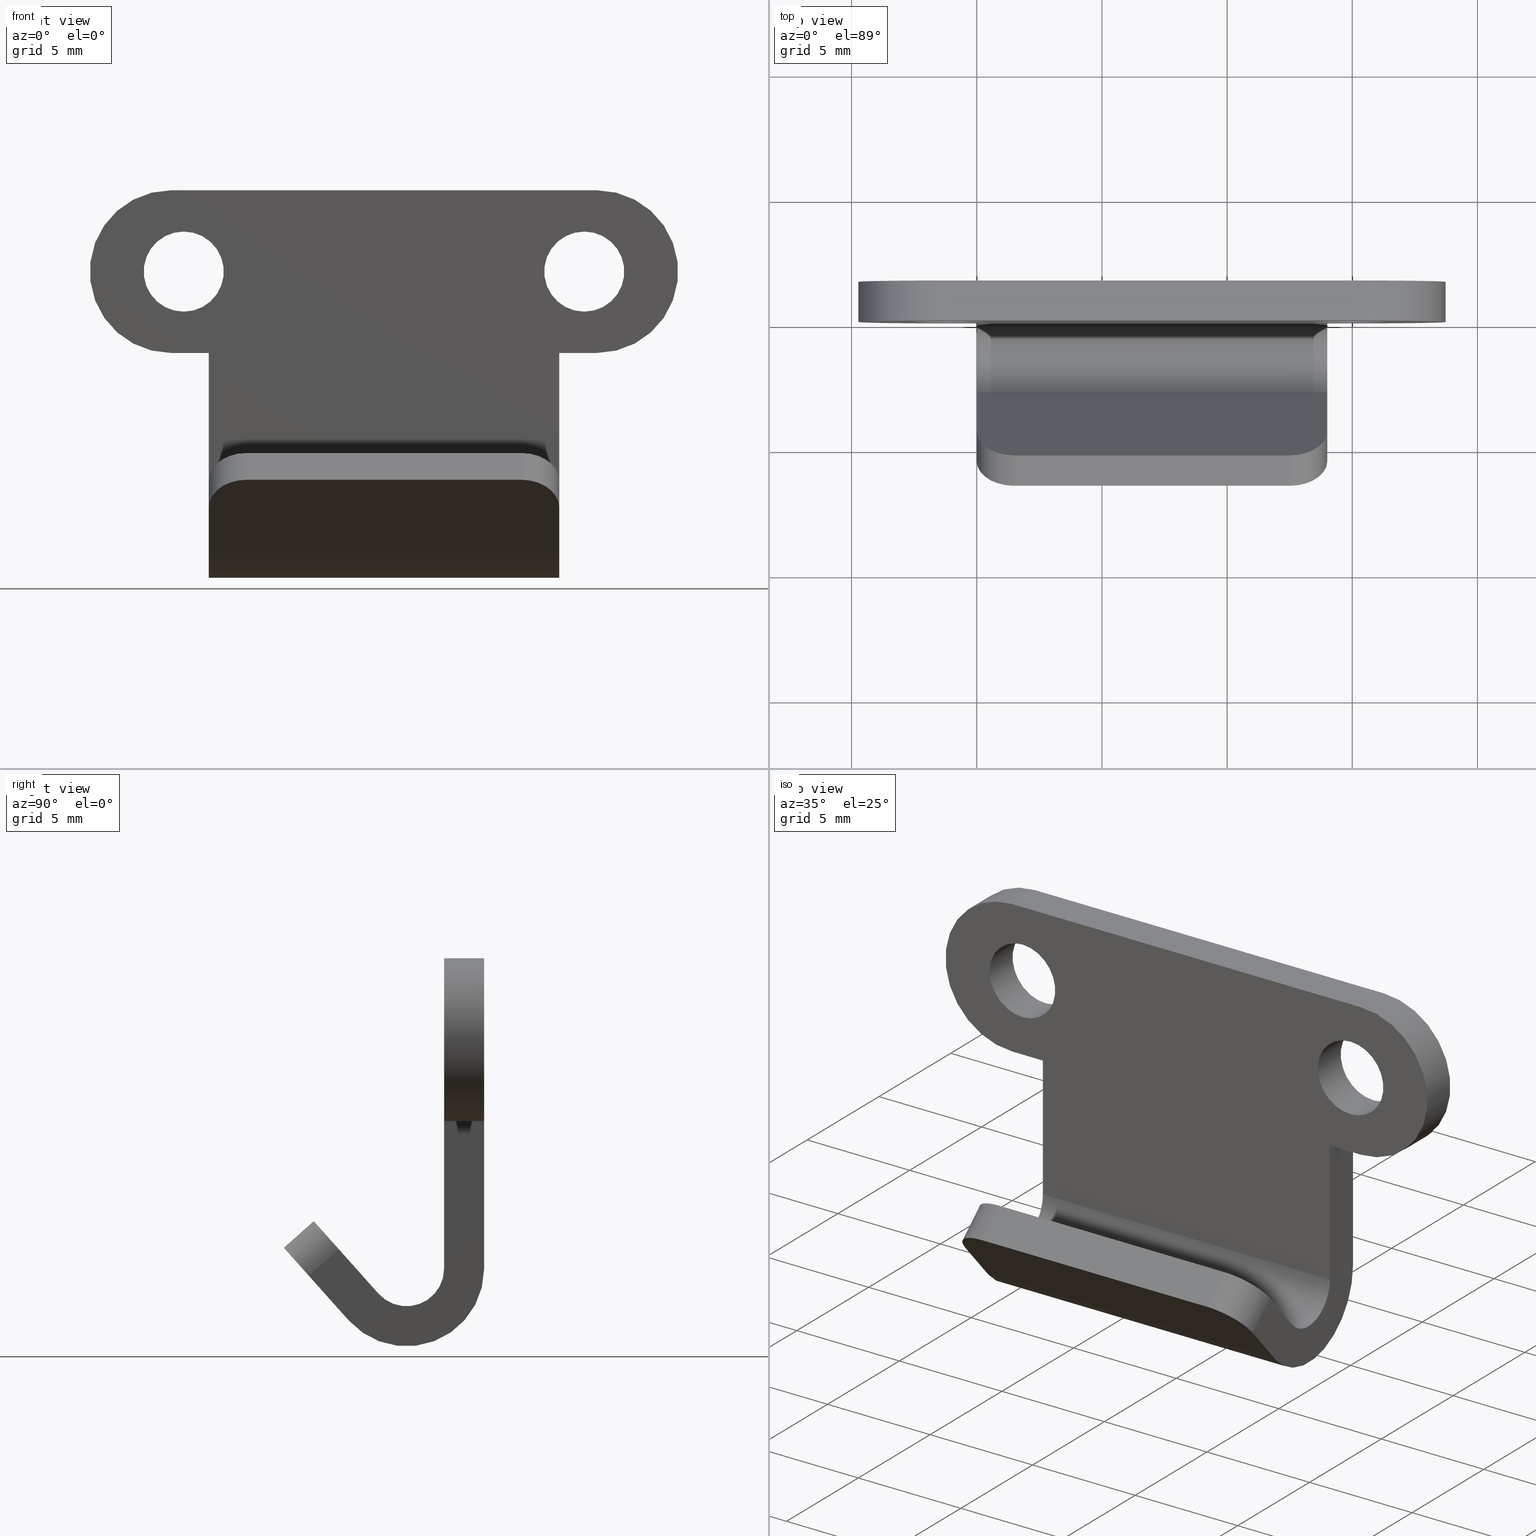
[diagram: canonical four-view strip — front | top / right | iso, engineering-drawing reading convention]
A machine part, canonical four-view strip (front | top / right | iso — engineering-drawing reading convention). The complete STEP part file that produces these views, byte-faithful:
ISO-10303-21;
HEADER;

FILE_DESCRIPTION( (''), '2;1');
FILE_NAME ('PC008.10740.TL_176Z_2_14907.stp','2022-11-01T15:23:56',(''),(''),'spGate 18.9.1 (****-****-****-****)','','');

FILE_SCHEMA (('AUTOMOTIVE_DESIGN'));
ENDSEC;

DATA;
#10=(GEOMETRIC_REPRESENTATION_CONTEXT(3) GLOBAL_UNCERTAINTY_ASSIGNED_CONTEXT((#11)) GLOBAL_UNIT_ASSIGNED_CONTEXT((#12,#13,#14)) REPRESENTATION_CONTEXT('ID1','3D'));
#11=UNCERTAINTY_MEASURE_WITH_UNIT(LENGTH_MEASURE(0.01),#15,'DISTANCE_ACCURACY_VALUE','Maximum model space distance between geometric entities at asserted connectivities');
#12=(NAMED_UNIT(*) SI_UNIT($,.STERADIAN.) SOLID_ANGLE_UNIT());
#13=(CONVERSION_BASED_UNIT('DEGREE',#16) NAMED_UNIT(#17) PLANE_ANGLE_UNIT());
#14=(LENGTH_UNIT() NAMED_UNIT(*) SI_UNIT(.MILLI.,.METRE.));
#15=(LENGTH_UNIT() NAMED_UNIT(*) SI_UNIT(.MILLI.,.METRE.));
#16=PLANE_ANGLE_MEASURE_WITH_UNIT(PLANE_ANGLE_MEASURE(0.01745329252),#18);
#17=DIMENSIONAL_EXPONENTS(0.0,0.0,0.0,0.0,0.0,0.0,0.0);
#18=(NAMED_UNIT(*) PLANE_ANGLE_UNIT() SI_UNIT($,.RADIAN.));
#19=MANIFOLD_SOLID_BREP('TL_176_2',#31);
#20=ADVANCED_BREP_SHAPE_REPRESENTATION('',(#19),#10);
#21=APPLICATION_CONTEXT('');
#22=APPLICATION_PROTOCOL_DEFINITION('International Standard','automotive_design',1999,#21);
#23=PRODUCT_DEFINITION_CONTEXT('',#21,'design');
#24=PRODUCT_CONTEXT('',#21,'mechanical');
#25=PRODUCT('','','',(#24));
#26=PRODUCT_DEFINITION_FORMATION_WITH_SPECIFIED_SOURCE('','',#25,.NOT_KNOWN.);
#27=PRODUCT_RELATED_PRODUCT_CATEGORY('tool','tool',(#25));
#28=PRODUCT_DEFINITION('','',#26,#23);
#29=PRODUCT_DEFINITION_SHAPE('','',#28);
#30=SHAPE_DEFINITION_REPRESENTATION(#29,#20);
#31=CLOSED_SHELL('',(#40,#41,#42,#43,#44,#45,#46,#47,#48,#49,#50,#51,#52,#53,#54,#55,#56,#57,#58,#59));
#32=COLOUR_RGB('',0.00000000000E+00,0.00000000000E+00,0.00000000000E+00);
#33=FILL_AREA_STYLE_COLOUR('',#32);
#34=FILL_AREA_STYLE('',(#33));
#35=SURFACE_STYLE_FILL_AREA(#34);
#36=SURFACE_SIDE_STYLE('',(#35));
#37=SURFACE_STYLE_USAGE(.BOTH.,#36);
#38=PRESENTATION_STYLE_ASSIGNMENT((#37));
#39=STYLED_ITEM('',(#38),#19);
#40=ADVANCED_FACE('',(#61),#60,.T.);
#41=ADVANCED_FACE('',(#71),#70,.T.);
#42=ADVANCED_FACE('',(#81),#80,.T.);
#43=ADVANCED_FACE('',(#91),#90,.T.);
#44=ADVANCED_FACE('',(#101),#100,.T.);
#45=ADVANCED_FACE('',(#111,#112,#113),#110,.T.);
#46=ADVANCED_FACE('',(#123),#122,.T.);
#47=ADVANCED_FACE('',(#133),#132,.F.);
#48=ADVANCED_FACE('',(#143),#142,.T.);
#49=ADVANCED_FACE('',(#153),#152,.T.);
#50=ADVANCED_FACE('',(#163),#162,.T.);
#51=ADVANCED_FACE('',(#173,#174,#175),#172,.T.);
#52=ADVANCED_FACE('',(#185),#184,.T.);
#53=ADVANCED_FACE('',(#195),#194,.T.);
#54=ADVANCED_FACE('',(#205),#204,.T.);
#55=ADVANCED_FACE('',(#215),#214,.T.);
#56=ADVANCED_FACE('',(#225),#224,.F.);
#57=ADVANCED_FACE('',(#235),#234,.F.);
#58=ADVANCED_FACE('',(#245),#244,.F.);
#59=ADVANCED_FACE('',(#255),#254,.F.);
#60=CYLINDRICAL_SURFACE('',#267,1.50000000000E+00);
#61=FACE_OUTER_BOUND('',#268,.T.);
#62=COLOUR_RGB('',1.00000000000E+00,1.00000000000E+00,1.00000000000E+00);
#63=FILL_AREA_STYLE_COLOUR('',#62);
#64=FILL_AREA_STYLE('',(#63));
#65=SURFACE_STYLE_FILL_AREA(#64);
#66=SURFACE_SIDE_STYLE('',(#65));
#67=SURFACE_STYLE_USAGE(.BOTH.,#66);
#68=PRESENTATION_STYLE_ASSIGNMENT((#67));
#69=STYLED_ITEM('',(#68),#40);
#70=PLANE('',#272);
#71=FACE_OUTER_BOUND('',#273,.T.);
#72=COLOUR_RGB('',1.00000000000E+00,1.00000000000E+00,1.00000000000E+00);
#73=FILL_AREA_STYLE_COLOUR('',#72);
#74=FILL_AREA_STYLE('',(#73));
#75=SURFACE_STYLE_FILL_AREA(#74);
#76=SURFACE_SIDE_STYLE('',(#75));
#77=SURFACE_STYLE_USAGE(.BOTH.,#76);
#78=PRESENTATION_STYLE_ASSIGNMENT((#77));
#79=STYLED_ITEM('',(#78),#41);
#80=PLANE('',#277);
#81=FACE_OUTER_BOUND('',#278,.T.);
#82=COLOUR_RGB('',1.00000000000E+00,1.00000000000E+00,1.00000000000E+00);
#83=FILL_AREA_STYLE_COLOUR('',#82);
#84=FILL_AREA_STYLE('',(#83));
#85=SURFACE_STYLE_FILL_AREA(#84);
#86=SURFACE_SIDE_STYLE('',(#85));
#87=SURFACE_STYLE_USAGE(.BOTH.,#86);
#88=PRESENTATION_STYLE_ASSIGNMENT((#87));
#89=STYLED_ITEM('',(#88),#42);
#90=CYLINDRICAL_SURFACE('',#282,1.50000000000E+00);
#91=FACE_OUTER_BOUND('',#283,.T.);
#92=COLOUR_RGB('',1.00000000000E+00,1.00000000000E+00,1.00000000000E+00);
#93=FILL_AREA_STYLE_COLOUR('',#92);
#94=FILL_AREA_STYLE('',(#93));
#95=SURFACE_STYLE_FILL_AREA(#94);
#96=SURFACE_SIDE_STYLE('',(#95));
#97=SURFACE_STYLE_USAGE(.BOTH.,#96);
#98=PRESENTATION_STYLE_ASSIGNMENT((#97));
#99=STYLED_ITEM('',(#98),#43);
#100=CYLINDRICAL_SURFACE('',#287,3.25000000000E+00);
#101=FACE_OUTER_BOUND('',#288,.T.);
#102=COLOUR_RGB('',1.00000000000E+00,1.00000000000E+00,1.00000000000E+00);
#103=FILL_AREA_STYLE_COLOUR('',#102);
#104=FILL_AREA_STYLE('',(#103));
#105=SURFACE_STYLE_FILL_AREA(#104);
#106=SURFACE_SIDE_STYLE('',(#105));
#107=SURFACE_STYLE_USAGE(.BOTH.,#106);
#108=PRESENTATION_STYLE_ASSIGNMENT((#107));
#109=STYLED_ITEM('',(#108),#44);
#110=PLANE('',#292);
#111=FACE_OUTER_BOUND('',#293,.T.);
#112=FACE_BOUND('',#294,.T.);
#113=FACE_BOUND('',#295,.T.);
#114=COLOUR_RGB('',1.00000000000E+00,1.00000000000E+00,1.00000000000E+00);
#115=FILL_AREA_STYLE_COLOUR('',#114);
#116=FILL_AREA_STYLE('',(#115));
#117=SURFACE_STYLE_FILL_AREA(#116);
#118=SURFACE_SIDE_STYLE('',(#117));
#119=SURFACE_STYLE_USAGE(.BOTH.,#118);
#120=PRESENTATION_STYLE_ASSIGNMENT((#119));
#121=STYLED_ITEM('',(#120),#45);
#122=PLANE('',#299);
#123=FACE_OUTER_BOUND('',#300,.T.);
#124=COLOUR_RGB('',1.00000000000E+00,1.00000000000E+00,1.00000000000E+00);
#125=FILL_AREA_STYLE_COLOUR('',#124);
#126=FILL_AREA_STYLE('',(#125));
#127=SURFACE_STYLE_FILL_AREA(#126);
#128=SURFACE_SIDE_STYLE('',(#127));
#129=SURFACE_STYLE_USAGE(.BOTH.,#128);
#130=PRESENTATION_STYLE_ASSIGNMENT((#129));
#131=STYLED_ITEM('',(#130),#46);
#132=CYLINDRICAL_SURFACE('',#304,1.50000000000E+00);
#133=FACE_OUTER_BOUND('',#305,.T.);
#134=COLOUR_RGB('',1.00000000000E+00,1.00000000000E+00,1.00000000000E+00);
#135=FILL_AREA_STYLE_COLOUR('',#134);
#136=FILL_AREA_STYLE('',(#135));
#137=SURFACE_STYLE_FILL_AREA(#136);
#138=SURFACE_SIDE_STYLE('',(#137));
#139=SURFACE_STYLE_USAGE(.BOTH.,#138);
#140=PRESENTATION_STYLE_ASSIGNMENT((#139));
#141=STYLED_ITEM('',(#140),#47);
#142=PLANE('',#309);
#143=FACE_OUTER_BOUND('',#310,.T.);
#144=COLOUR_RGB('',1.00000000000E+00,1.00000000000E+00,1.00000000000E+00);
#145=FILL_AREA_STYLE_COLOUR('',#144);
#146=FILL_AREA_STYLE('',(#145));
#147=SURFACE_STYLE_FILL_AREA(#146);
#148=SURFACE_SIDE_STYLE('',(#147));
#149=SURFACE_STYLE_USAGE(.BOTH.,#148);
#150=PRESENTATION_STYLE_ASSIGNMENT((#149));
#151=STYLED_ITEM('',(#150),#48);
#152=PLANE('',#314);
#153=FACE_OUTER_BOUND('',#315,.T.);
#154=COLOUR_RGB('',1.00000000000E+00,1.00000000000E+00,1.00000000000E+00);
#155=FILL_AREA_STYLE_COLOUR('',#154);
#156=FILL_AREA_STYLE('',(#155));
#157=SURFACE_STYLE_FILL_AREA(#156);
#158=SURFACE_SIDE_STYLE('',(#157));
#159=SURFACE_STYLE_USAGE(.BOTH.,#158);
#160=PRESENTATION_STYLE_ASSIGNMENT((#159));
#161=STYLED_ITEM('',(#160),#49);
#162=PLANE('',#319);
#163=FACE_OUTER_BOUND('',#320,.T.);
#164=COLOUR_RGB('',1.00000000000E+00,1.00000000000E+00,1.00000000000E+00);
#165=FILL_AREA_STYLE_COLOUR('',#164);
#166=FILL_AREA_STYLE('',(#165));
#167=SURFACE_STYLE_FILL_AREA(#166);
#168=SURFACE_SIDE_STYLE('',(#167));
#169=SURFACE_STYLE_USAGE(.BOTH.,#168);
#170=PRESENTATION_STYLE_ASSIGNMENT((#169));
#171=STYLED_ITEM('',(#170),#50);
#172=PLANE('',#324);
#173=FACE_OUTER_BOUND('',#325,.T.);
#174=FACE_BOUND('',#326,.T.);
#175=FACE_BOUND('',#327,.T.);
#176=COLOUR_RGB('',1.00000000000E+00,1.00000000000E+00,1.00000000000E+00);
#177=FILL_AREA_STYLE_COLOUR('',#176);
#178=FILL_AREA_STYLE('',(#177));
#179=SURFACE_STYLE_FILL_AREA(#178);
#180=SURFACE_SIDE_STYLE('',(#179));
#181=SURFACE_STYLE_USAGE(.BOTH.,#180);
#182=PRESENTATION_STYLE_ASSIGNMENT((#181));
#183=STYLED_ITEM('',(#182),#51);
#184=CYLINDRICAL_SURFACE('',#331,3.10000000000E+00);
#185=FACE_OUTER_BOUND('',#332,.T.);
#186=COLOUR_RGB('',1.00000000000E+00,1.00000000000E+00,1.00000000000E+00);
#187=FILL_AREA_STYLE_COLOUR('',#186);
#188=FILL_AREA_STYLE('',(#187));
#189=SURFACE_STYLE_FILL_AREA(#188);
#190=SURFACE_SIDE_STYLE('',(#189));
#191=SURFACE_STYLE_USAGE(.BOTH.,#190);
#192=PRESENTATION_STYLE_ASSIGNMENT((#191));
#193=STYLED_ITEM('',(#192),#52);
#194=PLANE('',#336);
#195=FACE_OUTER_BOUND('',#337,.T.);
#196=COLOUR_RGB('',1.00000000000E+00,1.00000000000E+00,1.00000000000E+00);
#197=FILL_AREA_STYLE_COLOUR('',#196);
#198=FILL_AREA_STYLE('',(#197));
#199=SURFACE_STYLE_FILL_AREA(#198);
#200=SURFACE_SIDE_STYLE('',(#199));
#201=SURFACE_STYLE_USAGE(.BOTH.,#200);
#202=PRESENTATION_STYLE_ASSIGNMENT((#201));
#203=STYLED_ITEM('',(#202),#53);
#204=CYLINDRICAL_SURFACE('',#341,3.25000000000E+00);
#205=FACE_OUTER_BOUND('',#342,.T.);
#206=COLOUR_RGB('',1.00000000000E+00,1.00000000000E+00,1.00000000000E+00);
#207=FILL_AREA_STYLE_COLOUR('',#206);
#208=FILL_AREA_STYLE('',(#207));
#209=SURFACE_STYLE_FILL_AREA(#208);
#210=SURFACE_SIDE_STYLE('',(#209));
#211=SURFACE_STYLE_USAGE(.BOTH.,#210);
#212=PRESENTATION_STYLE_ASSIGNMENT((#211));
#213=STYLED_ITEM('',(#212),#54);
#214=PLANE('',#346);
#215=FACE_OUTER_BOUND('',#347,.T.);
#216=COLOUR_RGB('',1.00000000000E+00,1.00000000000E+00,1.00000000000E+00);
#217=FILL_AREA_STYLE_COLOUR('',#216);
#218=FILL_AREA_STYLE('',(#217));
#219=SURFACE_STYLE_FILL_AREA(#218);
#220=SURFACE_SIDE_STYLE('',(#219));
#221=SURFACE_STYLE_USAGE(.BOTH.,#220);
#222=PRESENTATION_STYLE_ASSIGNMENT((#221));
#223=STYLED_ITEM('',(#222),#55);
#224=CYLINDRICAL_SURFACE('',#351,1.60000000000E+00);
#225=FACE_OUTER_BOUND('',#352,.T.);
#226=COLOUR_RGB('',1.00000000000E+00,1.00000000000E+00,1.00000000000E+00);
#227=FILL_AREA_STYLE_COLOUR('',#226);
#228=FILL_AREA_STYLE('',(#227));
#229=SURFACE_STYLE_FILL_AREA(#228);
#230=SURFACE_SIDE_STYLE('',(#229));
#231=SURFACE_STYLE_USAGE(.BOTH.,#230);
#232=PRESENTATION_STYLE_ASSIGNMENT((#231));
#233=STYLED_ITEM('',(#232),#56);
#234=CYLINDRICAL_SURFACE('',#356,1.60000000000E+00);
#235=FACE_OUTER_BOUND('',#357,.T.);
#236=COLOUR_RGB('',1.00000000000E+00,1.00000000000E+00,1.00000000000E+00);
#237=FILL_AREA_STYLE_COLOUR('',#236);
#238=FILL_AREA_STYLE('',(#237));
#239=SURFACE_STYLE_FILL_AREA(#238);
#240=SURFACE_SIDE_STYLE('',(#239));
#241=SURFACE_STYLE_USAGE(.BOTH.,#240);
#242=PRESENTATION_STYLE_ASSIGNMENT((#241));
#243=STYLED_ITEM('',(#242),#57);
#244=CYLINDRICAL_SURFACE('',#361,1.60000000000E+00);
#245=FACE_OUTER_BOUND('',#362,.T.);
#246=COLOUR_RGB('',1.00000000000E+00,1.00000000000E+00,1.00000000000E+00);
#247=FILL_AREA_STYLE_COLOUR('',#246);
#248=FILL_AREA_STYLE('',(#247));
#249=SURFACE_STYLE_FILL_AREA(#248);
#250=SURFACE_SIDE_STYLE('',(#249));
#251=SURFACE_STYLE_USAGE(.BOTH.,#250);
#252=PRESENTATION_STYLE_ASSIGNMENT((#251));
#253=STYLED_ITEM('',(#252),#58);
#254=CYLINDRICAL_SURFACE('',#366,1.60000000000E+00);
#255=FACE_OUTER_BOUND('',#367,.T.);
#256=COLOUR_RGB('',1.00000000000E+00,1.00000000000E+00,1.00000000000E+00);
#257=FILL_AREA_STYLE_COLOUR('',#256);
#258=FILL_AREA_STYLE('',(#257));
#259=SURFACE_STYLE_FILL_AREA(#258);
#260=SURFACE_SIDE_STYLE('',(#259));
#261=SURFACE_STYLE_USAGE(.BOTH.,#260);
#262=PRESENTATION_STYLE_ASSIGNMENT((#261));
#263=STYLED_ITEM('',(#262),#59);
#264=CARTESIAN_POINT('',(-1.35000000000E+01,-4.20798408523E+00,-8.36898286298E+00));
#265=DIRECTION('',(2.59437106580E-13,7.45988575320E-01,6.65958741584E-01));
#266=DIRECTION('',(-2.36847578587E-15,6.65958741584E-01,-7.45988575320E-01));
#267=AXIS2_PLACEMENT_3D('',#264,#265,#266);
#268=EDGE_LOOP('',(#368,#369,#370,#371));
#269=CARTESIAN_POINT('',(-1.50000000000E+01,2.30015658058E+00,-1.37632308630E+01));
#270=DIRECTION('',(-1.00000000000E+00,0.00000000000E+00,3.92320173035E-13));
#271=DIRECTION('',(0.00000000000E+00,-1.00000000000E+00,0.00000000000E+00));
#272=AXIS2_PLACEMENT_3D('',#269,#270,#271);
#273=EDGE_LOOP('',(#372,#373,#374,#375,#376,#377,#378,#379));
#274=CARTESIAN_POINT('',(-1.15000000000E+00,-1.60000000001E-01,-3.25000000000E+00));
#275=DIRECTION('',(0.00000000000E+00,0.00000000000E+00,-1.00000000000E+00));
#276=DIRECTION('',(0.00000000000E+00,1.00000000000E+00,0.00000000000E+00));
#277=AXIS2_PLACEMENT_3D('',#274,#275,#276);
#278=EDGE_LOOP('',(#380,#381,#382,#383));
#279=CARTESIAN_POINT('',(-2.50000000000E+00,-4.20798408523E+00,-8.36898286298E+00));
#280=DIRECTION('',(-2.61942875373E-13,7.45988575320E-01,6.65958741584E-01));
#281=DIRECTION('',(-1.00000000000E+00,-1.08522853503E-11,1.17630981063E-11));
#282=AXIS2_PLACEMENT_3D('',#279,#280,#281);
#283=EDGE_LOOP('',(#384,#385,#386,#387));
#284=CARTESIAN_POINT('',(5.00000000043E-01,8.32667268469E-17,9.99200722163E-14));
#285=DIRECTION('',(0.00000000000E+00,-1.00000000000E+00,-0.00000000000E+00));
#286=DIRECTION('',(-6.49053460550E-16,-0.00000000000E+00,-1.00000000000E+00));
#287=AXIS2_PLACEMENT_3D('',#284,#285,#286);
#288=EDGE_LOOP('',(#388,#389,#390,#391));
#289=CARTESIAN_POINT('',(-2.21000000001E+01,0.00000000000E+00,-1.03900000000E+01));
#290=DIRECTION('',(0.00000000000E+00,-1.00000000000E+00,0.00000000000E+00));
#291=DIRECTION('',(1.00000000000E+00,0.00000000000E+00,0.00000000000E+00));
#292=AXIS2_PLACEMENT_3D('',#289,#290,#291);
#293=EDGE_LOOP('',(#392,#393,#394,#395,#396,#397,#398,#399));
#294=EDGE_LOOP('',(#400,#401));
#295=EDGE_LOOP('',(#402,#403));
#296=CARTESIAN_POINT('',(2.20000000005E+00,-1.60000000000E-01,3.25000000000E+00));
#297=DIRECTION('',(0.00000000000E+00,-0.00000000000E+00,1.00000000000E+00));
#298=DIRECTION('',(0.00000000000E+00,1.00000000000E+00,0.00000000000E+00));
#299=AXIS2_PLACEMENT_3D('',#296,#297,#298);
#300=EDGE_LOOP('',(#404,#405,#406,#407));
#301=CARTESIAN_POINT('',(-9.99999999996E-01,-1.50000000000E+00,-9.15000000000E+00));
#302=DIRECTION('',(1.00000000000E+00,-0.00000000000E+00,-0.00000000000E+00));
#303=DIRECTION('',(-0.00000000000E+00,-1.00000000000E+00,-4.89124995321E-08));
#304=AXIS2_PLACEMENT_3D('',#301,#302,#303);
#305=EDGE_LOOP('',(#408,#409,#410,#411));
#306=CARTESIAN_POINT('',(-1.64000000000E+01,-5.46571613107E+00,-6.96010618876E+00));
#307=DIRECTION('',(-0.00000000000E+00,7.45988575320E-01,6.65958741584E-01));
#308=DIRECTION('',(1.00000000000E+00,0.00000000000E+00,0.00000000000E+00));
#309=AXIS2_PLACEMENT_3D('',#306,#307,#308);
#310=EDGE_LOOP('',(#412,#413,#414,#415,#416,#417));
#311=CARTESIAN_POINT('',(-1.46000000000E+01,-6.51986209017E+00,-8.42208738519E+00));
#312=DIRECTION('',(0.00000000000E+00,-6.65958741584E-01,7.45988575320E-01));
#313=DIRECTION('',(1.00000000000E+00,0.00000000000E+00,0.00000000000E+00));
#314=AXIS2_PLACEMENT_3D('',#311,#312,#313);
#315=EDGE_LOOP('',(#418,#419,#420,#421));
#316=CARTESIAN_POINT('',(-1.64000000000E+01,-3.55377065003E+00,-1.15043659101E+01));
#317=DIRECTION('',(0.00000000000E+00,-7.45988575320E-01,-6.65958741584E-01));
#318=DIRECTION('',(1.00000000000E+00,0.00000000000E+00,0.00000000000E+00));
#319=AXIS2_PLACEMENT_3D('',#316,#317,#318);
#320=EDGE_LOOP('',(#422,#423,#424,#425,#426,#427));
#321=CARTESIAN_POINT('',(-2.21000000001E+01,1.60000000000E+00,4.49000000000E+00));
#322=DIRECTION('',(-0.00000000000E+00,1.00000000000E+00,0.00000000000E+00));
#323=DIRECTION('',(1.00000000000E+00,0.00000000000E+00,0.00000000000E+00));
#324=AXIS2_PLACEMENT_3D('',#321,#322,#323);
#325=EDGE_LOOP('',(#428,#429,#430,#431,#432,#433,#434,#435));
#326=EDGE_LOOP('',(#436,#437));
#327=EDGE_LOOP('',(#438,#439));
#328=CARTESIAN_POINT('',(-9.99999999996E-01,-1.50000000000E+00,-9.15000000000E+00));
#329=DIRECTION('',(1.00000000000E+00,1.54066641268E-27,-9.92496870392E-16));
#330=DIRECTION('',(-2.26797510251E-30,-1.00000000000E+00,-1.55459874364E-12));
#331=AXIS2_PLACEMENT_3D('',#328,#329,#330);
#332=EDGE_LOOP('',(#440,#441,#442,#443));
#333=CARTESIAN_POINT('',(-9.99999999995E-01,-6.10172238631E+00,-1.37632308630E+01));
#334=DIRECTION('',(1.00000000000E+00,-0.00000000000E+00,3.91235987796E-13));
#335=DIRECTION('',(0.00000000000E+00,1.00000000000E+00,0.00000000000E+00));
#336=AXIS2_PLACEMENT_3D('',#333,#334,#335);
#337=EDGE_LOOP('',(#444,#445,#446,#447,#448,#449,#450,#451));
#338=CARTESIAN_POINT('',(-1.65000000000E+01,-2.00694162144E-16,9.99200722163E-14));
#339=DIRECTION('',(-7.88907768773E-17,-1.00000000000E+00,3.44955498022E-31));
#340=DIRECTION('',(4.37257068160E-15,-0.00000000000E+00,1.00000000000E+00));
#341=AXIS2_PLACEMENT_3D('',#338,#339,#340);
#342=EDGE_LOOP('',(#452,#453,#454,#455));
#343=CARTESIAN_POINT('',(-1.48500000000E+01,1.76000000001E+00,-3.25000000000E+00));
#344=DIRECTION('',(-0.00000000000E+00,-0.00000000000E+00,-1.00000000000E+00));
#345=DIRECTION('',(0.00000000000E+00,-1.00000000000E+00,0.00000000000E+00));
#346=AXIS2_PLACEMENT_3D('',#343,#344,#345);
#347=EDGE_LOOP('',(#456,#457,#458,#459));
#348=CARTESIAN_POINT('',(-9.79717439318E-17,-1.60000000000E-01,0.00000000000E+00));
#349=DIRECTION('',(-0.00000000000E+00,-1.00000000000E+00,-0.00000000000E+00));
#350=DIRECTION('',(-1.83697019872E-16,-0.00000000000E+00,1.00000000000E+00));
#351=AXIS2_PLACEMENT_3D('',#348,#349,#350);
#352=EDGE_LOOP('',(#460,#461,#462,#463));
#353=CARTESIAN_POINT('',(-9.79717439318E-17,-1.60000000000E-01,0.00000000000E+00));
#354=DIRECTION('',(-0.00000000000E+00,-1.00000000000E+00,-0.00000000000E+00));
#355=DIRECTION('',(-1.83697019872E-16,-0.00000000000E+00,1.00000000000E+00));
#356=AXIS2_PLACEMENT_3D('',#353,#354,#355);
#357=EDGE_LOOP('',(#464,#465,#466,#467));
#358=CARTESIAN_POINT('',(-1.60000000000E+01,-1.60000000000E-01,0.00000000000E+00));
#359=DIRECTION('',(-0.00000000000E+00,-1.00000000000E+00,-0.00000000000E+00));
#360=DIRECTION('',(0.00000000000E+00,0.00000000000E+00,-1.00000000000E+00));
#361=AXIS2_PLACEMENT_3D('',#358,#359,#360);
#362=EDGE_LOOP('',(#468,#469,#470,#471));
#363=CARTESIAN_POINT('',(-1.60000000000E+01,-1.60000000000E-01,0.00000000000E+00));
#364=DIRECTION('',(-0.00000000000E+00,-1.00000000000E+00,-0.00000000000E+00));
#365=DIRECTION('',(0.00000000000E+00,0.00000000000E+00,-1.00000000000E+00));
#366=AXIS2_PLACEMENT_3D('',#363,#364,#365);
#367=EDGE_LOOP('',(#472,#473,#474,#475));
#368=ORIENTED_EDGE('',*,*,#476,.T.);
#369=ORIENTED_EDGE('',*,*,#477,.T.);
#370=ORIENTED_EDGE('',*,*,#478,.T.);
#371=ORIENTED_EDGE('',*,*,#479,.T.);
#372=ORIENTED_EDGE('',*,*,#480,.T.);
#373=ORIENTED_EDGE('',*,*,#481,.T.);
#374=ORIENTED_EDGE('',*,*,#482,.T.);
#375=ORIENTED_EDGE('',*,*,#483,.F.);
#376=ORIENTED_EDGE('',*,*,#484,.T.);
#377=ORIENTED_EDGE('',*,*,#485,.F.);
#378=ORIENTED_EDGE('',*,*,#486,.T.);
#379=ORIENTED_EDGE('',*,*,#479,.F.);
#380=ORIENTED_EDGE('',*,*,#487,.F.);
#381=ORIENTED_EDGE('',*,*,#488,.F.);
#382=ORIENTED_EDGE('',*,*,#489,.T.);
#383=ORIENTED_EDGE('',*,*,#490,.F.);
#384=ORIENTED_EDGE('',*,*,#491,.F.);
#385=ORIENTED_EDGE('',*,*,#492,.F.);
#386=ORIENTED_EDGE('',*,*,#493,.F.);
#387=ORIENTED_EDGE('',*,*,#494,.F.);
#388=ORIENTED_EDGE('',*,*,#495,.T.);
#389=ORIENTED_EDGE('',*,*,#489,.F.);
#390=ORIENTED_EDGE('',*,*,#496,.T.);
#391=ORIENTED_EDGE('',*,*,#497,.T.);
#392=ORIENTED_EDGE('',*,*,#495,.F.);
#393=ORIENTED_EDGE('',*,*,#498,.F.);
#394=ORIENTED_EDGE('',*,*,#499,.T.);
#395=ORIENTED_EDGE('',*,*,#500,.F.);
#396=ORIENTED_EDGE('',*,*,#482,.F.);
#397=ORIENTED_EDGE('',*,*,#501,.T.);
#398=ORIENTED_EDGE('',*,*,#502,.T.);
#399=ORIENTED_EDGE('',*,*,#490,.T.);
#400=ORIENTED_EDGE('',*,*,#503,.F.);
#401=ORIENTED_EDGE('',*,*,#504,.F.);
#402=ORIENTED_EDGE('',*,*,#505,.T.);
#403=ORIENTED_EDGE('',*,*,#506,.T.);
#404=ORIENTED_EDGE('',*,*,#497,.F.);
#405=ORIENTED_EDGE('',*,*,#507,.F.);
#406=ORIENTED_EDGE('',*,*,#508,.T.);
#407=ORIENTED_EDGE('',*,*,#498,.T.);
#408=ORIENTED_EDGE('',*,*,#509,.T.);
#409=ORIENTED_EDGE('',*,*,#510,.T.);
#410=ORIENTED_EDGE('',*,*,#501,.F.);
#411=ORIENTED_EDGE('',*,*,#481,.F.);
#412=ORIENTED_EDGE('',*,*,#511,.T.);
#413=ORIENTED_EDGE('',*,*,#493,.T.);
#414=ORIENTED_EDGE('',*,*,#512,.T.);
#415=ORIENTED_EDGE('',*,*,#509,.F.);
#416=ORIENTED_EDGE('',*,*,#480,.F.);
#417=ORIENTED_EDGE('',*,*,#478,.F.);
#418=ORIENTED_EDGE('',*,*,#513,.T.);
#419=ORIENTED_EDGE('',*,*,#494,.T.);
#420=ORIENTED_EDGE('',*,*,#511,.F.);
#421=ORIENTED_EDGE('',*,*,#477,.F.);
#422=ORIENTED_EDGE('',*,*,#514,.T.);
#423=ORIENTED_EDGE('',*,*,#491,.T.);
#424=ORIENTED_EDGE('',*,*,#513,.F.);
#425=ORIENTED_EDGE('',*,*,#476,.F.);
#426=ORIENTED_EDGE('',*,*,#486,.F.);
#427=ORIENTED_EDGE('',*,*,#515,.T.);
#428=ORIENTED_EDGE('',*,*,#507,.T.);
#429=ORIENTED_EDGE('',*,*,#496,.F.);
#430=ORIENTED_EDGE('',*,*,#488,.T.);
#431=ORIENTED_EDGE('',*,*,#516,.T.);
#432=ORIENTED_EDGE('',*,*,#517,.F.);
#433=ORIENTED_EDGE('',*,*,#484,.F.);
#434=ORIENTED_EDGE('',*,*,#518,.F.);
#435=ORIENTED_EDGE('',*,*,#519,.T.);
#436=ORIENTED_EDGE('',*,*,#520,.T.);
#437=ORIENTED_EDGE('',*,*,#521,.T.);
#438=ORIENTED_EDGE('',*,*,#522,.F.);
#439=ORIENTED_EDGE('',*,*,#523,.F.);
#440=ORIENTED_EDGE('',*,*,#517,.T.);
#441=ORIENTED_EDGE('',*,*,#524,.F.);
#442=ORIENTED_EDGE('',*,*,#515,.F.);
#443=ORIENTED_EDGE('',*,*,#485,.T.);
#444=ORIENTED_EDGE('',*,*,#512,.F.);
#445=ORIENTED_EDGE('',*,*,#492,.T.);
#446=ORIENTED_EDGE('',*,*,#514,.F.);
#447=ORIENTED_EDGE('',*,*,#524,.T.);
#448=ORIENTED_EDGE('',*,*,#516,.F.);
#449=ORIENTED_EDGE('',*,*,#487,.T.);
#450=ORIENTED_EDGE('',*,*,#502,.F.);
#451=ORIENTED_EDGE('',*,*,#510,.F.);
#452=ORIENTED_EDGE('',*,*,#499,.F.);
#453=ORIENTED_EDGE('',*,*,#508,.F.);
#454=ORIENTED_EDGE('',*,*,#519,.F.);
#455=ORIENTED_EDGE('',*,*,#525,.T.);
#456=ORIENTED_EDGE('',*,*,#483,.T.);
#457=ORIENTED_EDGE('',*,*,#500,.T.);
#458=ORIENTED_EDGE('',*,*,#525,.F.);
#459=ORIENTED_EDGE('',*,*,#518,.T.);
#460=ORIENTED_EDGE('',*,*,#521,.F.);
#461=ORIENTED_EDGE('',*,*,#526,.T.);
#462=ORIENTED_EDGE('',*,*,#503,.T.);
#463=ORIENTED_EDGE('',*,*,#527,.F.);
#464=ORIENTED_EDGE('',*,*,#504,.T.);
#465=ORIENTED_EDGE('',*,*,#526,.F.);
#466=ORIENTED_EDGE('',*,*,#520,.F.);
#467=ORIENTED_EDGE('',*,*,#527,.T.);
#468=ORIENTED_EDGE('',*,*,#522,.T.);
#469=ORIENTED_EDGE('',*,*,#528,.T.);
#470=ORIENTED_EDGE('',*,*,#506,.F.);
#471=ORIENTED_EDGE('',*,*,#529,.F.);
#472=ORIENTED_EDGE('',*,*,#505,.F.);
#473=ORIENTED_EDGE('',*,*,#528,.F.);
#474=ORIENTED_EDGE('',*,*,#523,.T.);
#475=ORIENTED_EDGE('',*,*,#529,.T.);
#476=EDGE_CURVE('',#530,#531,#532,.T.);
#477=EDGE_CURVE('',#531,#538,#539,.T.);
#478=EDGE_CURVE('',#538,#545,#546,.T.);
#479=EDGE_CURVE('',#545,#530,#552,.T.);
#480=EDGE_CURVE('',#545,#558,#559,.T.);
#481=EDGE_CURVE('',#558,#565,#566,.T.);
#482=EDGE_CURVE('',#565,#572,#573,.T.);
#483=EDGE_CURVE('',#579,#572,#580,.T.);
#484=EDGE_CURVE('',#579,#586,#587,.T.);
#485=EDGE_CURVE('',#593,#586,#594,.T.);
#486=EDGE_CURVE('',#593,#530,#600,.T.);
#487=EDGE_CURVE('',#606,#607,#608,.T.);
#488=EDGE_CURVE('',#614,#606,#615,.T.);
#489=EDGE_CURVE('',#614,#621,#622,.T.);
#490=EDGE_CURVE('',#607,#621,#628,.T.);
#491=EDGE_CURVE('',#634,#635,#636,.T.);
#492=EDGE_CURVE('',#642,#634,#643,.T.);
#493=EDGE_CURVE('',#649,#642,#650,.T.);
#494=EDGE_CURVE('',#635,#649,#656,.T.);
#495=EDGE_CURVE('',#662,#621,#663,.T.);
#496=EDGE_CURVE('',#614,#669,#670,.T.);
#497=EDGE_CURVE('',#669,#662,#676,.T.);
#498=EDGE_CURVE('',#682,#662,#683,.T.);
#499=EDGE_CURVE('',#682,#689,#690,.T.);
#500=EDGE_CURVE('',#572,#689,#696,.T.);
#501=EDGE_CURVE('',#565,#702,#703,.T.);
#502=EDGE_CURVE('',#702,#607,#709,.T.);
#503=EDGE_CURVE('',#715,#716,#717,.T.);
#504=EDGE_CURVE('',#716,#715,#723,.T.);
#505=EDGE_CURVE('',#729,#730,#731,.T.);
#506=EDGE_CURVE('',#730,#729,#737,.T.);
#507=EDGE_CURVE('',#743,#669,#744,.T.);
#508=EDGE_CURVE('',#743,#682,#750,.T.);
#509=EDGE_CURVE('',#558,#756,#757,.T.);
#510=EDGE_CURVE('',#756,#702,#763,.T.);
#511=EDGE_CURVE('',#538,#649,#769,.T.);
#512=EDGE_CURVE('',#642,#756,#775,.T.);
#513=EDGE_CURVE('',#531,#635,#781,.T.);
#514=EDGE_CURVE('',#787,#634,#788,.T.);
#515=EDGE_CURVE('',#593,#787,#794,.T.);
#516=EDGE_CURVE('',#606,#800,#801,.T.);
#517=EDGE_CURVE('',#586,#800,#807,.T.);
#518=EDGE_CURVE('',#813,#579,#814,.T.);
#519=EDGE_CURVE('',#813,#743,#820,.T.);
#520=EDGE_CURVE('',#826,#827,#828,.T.);
#521=EDGE_CURVE('',#827,#826,#834,.T.);
#522=EDGE_CURVE('',#840,#841,#842,.T.);
#523=EDGE_CURVE('',#841,#840,#848,.T.);
#524=EDGE_CURVE('',#787,#800,#854,.T.);
#525=EDGE_CURVE('',#813,#689,#860,.T.);
#526=EDGE_CURVE('',#827,#715,#866,.T.);
#527=EDGE_CURVE('',#826,#716,#872,.T.);
#528=EDGE_CURVE('',#841,#729,#878,.T.);
#529=EDGE_CURVE('',#840,#730,#884,.T.);
#530=VERTEX_POINT('',#890);
#531=VERTEX_POINT('',#891);
#532=CIRCLE('',#895,1.50000000000E+00);
#533=COLOUR_RGB('',1.00000000000E+00,1.00000000000E+00,1.00000000000E+00);
#534=DRAUGHTING_PRE_DEFINED_CURVE_FONT('continuous');
#535=CURVE_STYLE( '',#534, POSITIVE_LENGTH_MEASURE(1.00000000000E-06),#533);
#536=PRESENTATION_STYLE_ASSIGNMENT((#535));
#537=STYLED_ITEM('',(#536),#476);
#538=VERTEX_POINT('',#896);
#539=LINE('',#897,#898);
#540=COLOUR_RGB('',1.00000000000E+00,1.00000000000E+00,1.00000000000E+00);
#541=DRAUGHTING_PRE_DEFINED_CURVE_FONT('continuous');
#542=CURVE_STYLE( '',#541, POSITIVE_LENGTH_MEASURE(1.00000000000E-06),#540);
#543=PRESENTATION_STYLE_ASSIGNMENT((#542));
#544=STYLED_ITEM('',(#543),#477);
#545=VERTEX_POINT('',#900);
#546=CIRCLE('',#904,1.50000000000E+00);
#547=COLOUR_RGB('',1.00000000000E+00,1.00000000000E+00,1.00000000000E+00);
#548=DRAUGHTING_PRE_DEFINED_CURVE_FONT('continuous');
#549=CURVE_STYLE( '',#548, POSITIVE_LENGTH_MEASURE(1.00000000000E-06),#547);
#550=PRESENTATION_STYLE_ASSIGNMENT((#549));
#551=STYLED_ITEM('',(#550),#478);
#552=LINE('',#905,#906);
#553=COLOUR_RGB('',1.00000000000E+00,1.00000000000E+00,1.00000000000E+00);
#554=DRAUGHTING_PRE_DEFINED_CURVE_FONT('continuous');
#555=CURVE_STYLE( '',#554, POSITIVE_LENGTH_MEASURE(1.00000000000E-06),#553);
#556=PRESENTATION_STYLE_ASSIGNMENT((#555));
#557=STYLED_ITEM('',(#556),#479);
#558=VERTEX_POINT('',#908);
#559=LINE('',#909,#910);
#560=COLOUR_RGB('',1.00000000000E+00,1.00000000000E+00,1.00000000000E+00);
#561=DRAUGHTING_PRE_DEFINED_CURVE_FONT('continuous');
#562=CURVE_STYLE( '',#561, POSITIVE_LENGTH_MEASURE(1.00000000000E-06),#560);
#563=PRESENTATION_STYLE_ASSIGNMENT((#562));
#564=STYLED_ITEM('',(#563),#480);
#565=VERTEX_POINT('',#912);
#566=CIRCLE('',#916,1.50000000000E+00);
#567=COLOUR_RGB('',1.00000000000E+00,1.00000000000E+00,1.00000000000E+00);
#568=DRAUGHTING_PRE_DEFINED_CURVE_FONT('continuous');
#569=CURVE_STYLE( '',#568, POSITIVE_LENGTH_MEASURE(1.00000000000E-06),#567);
#570=PRESENTATION_STYLE_ASSIGNMENT((#569));
#571=STYLED_ITEM('',(#570),#481);
#572=VERTEX_POINT('',#917);
#573=LINE('',#918,#919);
#574=COLOUR_RGB('',1.00000000000E+00,1.00000000000E+00,1.00000000000E+00);
#575=DRAUGHTING_PRE_DEFINED_CURVE_FONT('continuous');
#576=CURVE_STYLE( '',#575, POSITIVE_LENGTH_MEASURE(1.00000000000E-06),#574);
#577=PRESENTATION_STYLE_ASSIGNMENT((#576));
#578=STYLED_ITEM('',(#577),#482);
#579=VERTEX_POINT('',#921);
#580=LINE('',#922,#923);
#581=COLOUR_RGB('',1.00000000000E+00,1.00000000000E+00,1.00000000000E+00);
#582=DRAUGHTING_PRE_DEFINED_CURVE_FONT('continuous');
#583=CURVE_STYLE( '',#582, POSITIVE_LENGTH_MEASURE(1.00000000000E-06),#581);
#584=PRESENTATION_STYLE_ASSIGNMENT((#583));
#585=STYLED_ITEM('',(#584),#483);
#586=VERTEX_POINT('',#925);
#587=LINE('',#926,#927);
#588=COLOUR_RGB('',1.00000000000E+00,1.00000000000E+00,1.00000000000E+00);
#589=DRAUGHTING_PRE_DEFINED_CURVE_FONT('continuous');
#590=CURVE_STYLE( '',#589, POSITIVE_LENGTH_MEASURE(1.00000000000E-06),#588);
#591=PRESENTATION_STYLE_ASSIGNMENT((#590));
#592=STYLED_ITEM('',(#591),#484);
#593=VERTEX_POINT('',#929);
#594=CIRCLE('',#933,3.10000000000E+00);
#595=COLOUR_RGB('',1.00000000000E+00,1.00000000000E+00,1.00000000000E+00);
#596=DRAUGHTING_PRE_DEFINED_CURVE_FONT('continuous');
#597=CURVE_STYLE( '',#596, POSITIVE_LENGTH_MEASURE(1.00000000000E-06),#595);
#598=PRESENTATION_STYLE_ASSIGNMENT((#597));
#599=STYLED_ITEM('',(#598),#485);
#600=LINE('',#934,#935);
#601=COLOUR_RGB('',1.00000000000E+00,1.00000000000E+00,1.00000000000E+00);
#602=DRAUGHTING_PRE_DEFINED_CURVE_FONT('continuous');
#603=CURVE_STYLE( '',#602, POSITIVE_LENGTH_MEASURE(1.00000000000E-06),#601);
#604=PRESENTATION_STYLE_ASSIGNMENT((#603));
#605=STYLED_ITEM('',(#604),#486);
#606=VERTEX_POINT('',#937);
#607=VERTEX_POINT('',#938);
#608=LINE('',#939,#940);
#609=COLOUR_RGB('',1.00000000000E+00,1.00000000000E+00,1.00000000000E+00);
#610=DRAUGHTING_PRE_DEFINED_CURVE_FONT('continuous');
#611=CURVE_STYLE( '',#610, POSITIVE_LENGTH_MEASURE(1.00000000000E-06),#609);
#612=PRESENTATION_STYLE_ASSIGNMENT((#611));
#613=STYLED_ITEM('',(#612),#487);
#614=VERTEX_POINT('',#942);
#615=LINE('',#943,#944);
#616=COLOUR_RGB('',1.00000000000E+00,1.00000000000E+00,1.00000000000E+00);
#617=DRAUGHTING_PRE_DEFINED_CURVE_FONT('continuous');
#618=CURVE_STYLE( '',#617, POSITIVE_LENGTH_MEASURE(1.00000000000E-06),#616);
#619=PRESENTATION_STYLE_ASSIGNMENT((#618));
#620=STYLED_ITEM('',(#619),#488);
#621=VERTEX_POINT('',#946);
#622=LINE('',#947,#948);
#623=COLOUR_RGB('',1.00000000000E+00,1.00000000000E+00,1.00000000000E+00);
#624=DRAUGHTING_PRE_DEFINED_CURVE_FONT('continuous');
#625=CURVE_STYLE( '',#624, POSITIVE_LENGTH_MEASURE(1.00000000000E-06),#623);
#626=PRESENTATION_STYLE_ASSIGNMENT((#625));
#627=STYLED_ITEM('',(#626),#489);
#628=LINE('',#950,#951);
#629=COLOUR_RGB('',1.00000000000E+00,1.00000000000E+00,1.00000000000E+00);
#630=DRAUGHTING_PRE_DEFINED_CURVE_FONT('continuous');
#631=CURVE_STYLE( '',#630, POSITIVE_LENGTH_MEASURE(1.00000000000E-06),#629);
#632=PRESENTATION_STYLE_ASSIGNMENT((#631));
#633=STYLED_ITEM('',(#632),#490);
#634=VERTEX_POINT('',#953);
#635=VERTEX_POINT('',#954);
#636=CIRCLE('',#958,1.50000000000E+00);
#637=COLOUR_RGB('',1.00000000000E+00,1.00000000000E+00,1.00000000000E+00);
#638=DRAUGHTING_PRE_DEFINED_CURVE_FONT('continuous');
#639=CURVE_STYLE( '',#638, POSITIVE_LENGTH_MEASURE(1.00000000000E-06),#637);
#640=PRESENTATION_STYLE_ASSIGNMENT((#639));
#641=STYLED_ITEM('',(#640),#491);
#642=VERTEX_POINT('',#959);
#643=LINE('',#960,#961);
#644=COLOUR_RGB('',1.00000000000E+00,1.00000000000E+00,1.00000000000E+00);
#645=DRAUGHTING_PRE_DEFINED_CURVE_FONT('continuous');
#646=CURVE_STYLE( '',#645, POSITIVE_LENGTH_MEASURE(1.00000000000E-06),#644);
#647=PRESENTATION_STYLE_ASSIGNMENT((#646));
#648=STYLED_ITEM('',(#647),#492);
#649=VERTEX_POINT('',#963);
#650=CIRCLE('',#967,1.50000000000E+00);
#651=COLOUR_RGB('',1.00000000000E+00,1.00000000000E+00,1.00000000000E+00);
#652=DRAUGHTING_PRE_DEFINED_CURVE_FONT('continuous');
#653=CURVE_STYLE( '',#652, POSITIVE_LENGTH_MEASURE(1.00000000000E-06),#651);
#654=PRESENTATION_STYLE_ASSIGNMENT((#653));
#655=STYLED_ITEM('',(#654),#493);
#656=LINE('',#968,#969);
#657=COLOUR_RGB('',1.00000000000E+00,1.00000000000E+00,1.00000000000E+00);
#658=DRAUGHTING_PRE_DEFINED_CURVE_FONT('continuous');
#659=CURVE_STYLE( '',#658, POSITIVE_LENGTH_MEASURE(1.00000000000E-06),#657);
#660=PRESENTATION_STYLE_ASSIGNMENT((#659));
#661=STYLED_ITEM('',(#660),#494);
#662=VERTEX_POINT('',#971);
#663=CIRCLE('',#975,3.25000000000E+00);
#664=COLOUR_RGB('',1.00000000000E+00,1.00000000000E+00,1.00000000000E+00);
#665=DRAUGHTING_PRE_DEFINED_CURVE_FONT('continuous');
#666=CURVE_STYLE( '',#665, POSITIVE_LENGTH_MEASURE(1.00000000000E-06),#664);
#667=PRESENTATION_STYLE_ASSIGNMENT((#666));
#668=STYLED_ITEM('',(#667),#495);
#669=VERTEX_POINT('',#976);
#670=CIRCLE('',#980,3.25000000000E+00);
#671=COLOUR_RGB('',1.00000000000E+00,1.00000000000E+00,1.00000000000E+00);
#672=DRAUGHTING_PRE_DEFINED_CURVE_FONT('continuous');
#673=CURVE_STYLE( '',#672, POSITIVE_LENGTH_MEASURE(1.00000000000E-06),#671);
#674=PRESENTATION_STYLE_ASSIGNMENT((#673));
#675=STYLED_ITEM('',(#674),#496);
#676=LINE('',#981,#982);
#677=COLOUR_RGB('',1.00000000000E+00,1.00000000000E+00,1.00000000000E+00);
#678=DRAUGHTING_PRE_DEFINED_CURVE_FONT('continuous');
#679=CURVE_STYLE( '',#678, POSITIVE_LENGTH_MEASURE(1.00000000000E-06),#677);
#680=PRESENTATION_STYLE_ASSIGNMENT((#679));
#681=STYLED_ITEM('',(#680),#497);
#682=VERTEX_POINT('',#984);
#683=LINE('',#985,#986);
#684=COLOUR_RGB('',1.00000000000E+00,1.00000000000E+00,1.00000000000E+00);
#685=DRAUGHTING_PRE_DEFINED_CURVE_FONT('continuous');
#686=CURVE_STYLE( '',#685, POSITIVE_LENGTH_MEASURE(1.00000000000E-06),#684);
#687=PRESENTATION_STYLE_ASSIGNMENT((#686));
#688=STYLED_ITEM('',(#687),#498);
#689=VERTEX_POINT('',#988);
#690=CIRCLE('',#992,3.25000000000E+00);
#691=COLOUR_RGB('',1.00000000000E+00,1.00000000000E+00,1.00000000000E+00);
#692=DRAUGHTING_PRE_DEFINED_CURVE_FONT('continuous');
#693=CURVE_STYLE( '',#692, POSITIVE_LENGTH_MEASURE(1.00000000000E-06),#691);
#694=PRESENTATION_STYLE_ASSIGNMENT((#693));
#695=STYLED_ITEM('',(#694),#499);
#696=LINE('',#993,#994);
#697=COLOUR_RGB('',1.00000000000E+00,1.00000000000E+00,1.00000000000E+00);
#698=DRAUGHTING_PRE_DEFINED_CURVE_FONT('continuous');
#699=CURVE_STYLE( '',#698, POSITIVE_LENGTH_MEASURE(1.00000000000E-06),#697);
#700=PRESENTATION_STYLE_ASSIGNMENT((#699));
#701=STYLED_ITEM('',(#700),#500);
#702=VERTEX_POINT('',#996);
#703=LINE('',#997,#998);
#704=COLOUR_RGB('',1.00000000000E+00,1.00000000000E+00,1.00000000000E+00);
#705=DRAUGHTING_PRE_DEFINED_CURVE_FONT('continuous');
#706=CURVE_STYLE( '',#705, POSITIVE_LENGTH_MEASURE(1.00000000000E-06),#704);
#707=PRESENTATION_STYLE_ASSIGNMENT((#706));
#708=STYLED_ITEM('',(#707),#501);
#709=LINE('',#1000,#1001);
#710=COLOUR_RGB('',1.00000000000E+00,1.00000000000E+00,1.00000000000E+00);
#711=DRAUGHTING_PRE_DEFINED_CURVE_FONT('continuous');
#712=CURVE_STYLE( '',#711, POSITIVE_LENGTH_MEASURE(1.00000000000E-06),#710);
#713=PRESENTATION_STYLE_ASSIGNMENT((#712));
#714=STYLED_ITEM('',(#713),#502);
#715=VERTEX_POINT('',#1003);
#716=VERTEX_POINT('',#1004);
#717=CIRCLE('',#1008,1.60000000000E+00);
#718=COLOUR_RGB('',1.00000000000E+00,1.00000000000E+00,1.00000000000E+00);
#719=DRAUGHTING_PRE_DEFINED_CURVE_FONT('continuous');
#720=CURVE_STYLE( '',#719, POSITIVE_LENGTH_MEASURE(1.00000000000E-06),#718);
#721=PRESENTATION_STYLE_ASSIGNMENT((#720));
#722=STYLED_ITEM('',(#721),#503);
#723=CIRCLE('',#1012,1.60000000000E+00);
#724=COLOUR_RGB('',1.00000000000E+00,1.00000000000E+00,1.00000000000E+00);
#725=DRAUGHTING_PRE_DEFINED_CURVE_FONT('continuous');
#726=CURVE_STYLE( '',#725, POSITIVE_LENGTH_MEASURE(1.00000000000E-06),#724);
#727=PRESENTATION_STYLE_ASSIGNMENT((#726));
#728=STYLED_ITEM('',(#727),#504);
#729=VERTEX_POINT('',#1013);
#730=VERTEX_POINT('',#1014);
#731=CIRCLE('',#1018,1.60000000000E+00);
#732=COLOUR_RGB('',1.00000000000E+00,1.00000000000E+00,1.00000000000E+00);
#733=DRAUGHTING_PRE_DEFINED_CURVE_FONT('continuous');
#734=CURVE_STYLE( '',#733, POSITIVE_LENGTH_MEASURE(1.00000000000E-06),#732);
#735=PRESENTATION_STYLE_ASSIGNMENT((#734));
#736=STYLED_ITEM('',(#735),#505);
#737=CIRCLE('',#1022,1.60000000000E+00);
#738=COLOUR_RGB('',1.00000000000E+00,1.00000000000E+00,1.00000000000E+00);
#739=DRAUGHTING_PRE_DEFINED_CURVE_FONT('continuous');
#740=CURVE_STYLE( '',#739, POSITIVE_LENGTH_MEASURE(1.00000000000E-06),#738);
#741=PRESENTATION_STYLE_ASSIGNMENT((#740));
#742=STYLED_ITEM('',(#741),#506);
#743=VERTEX_POINT('',#1023);
#744=LINE('',#1024,#1025);
#745=COLOUR_RGB('',1.00000000000E+00,1.00000000000E+00,1.00000000000E+00);
#746=DRAUGHTING_PRE_DEFINED_CURVE_FONT('continuous');
#747=CURVE_STYLE( '',#746, POSITIVE_LENGTH_MEASURE(1.00000000000E-06),#745);
#748=PRESENTATION_STYLE_ASSIGNMENT((#747));
#749=STYLED_ITEM('',(#748),#507);
#750=LINE('',#1027,#1028);
#751=COLOUR_RGB('',1.00000000000E+00,1.00000000000E+00,1.00000000000E+00);
#752=DRAUGHTING_PRE_DEFINED_CURVE_FONT('continuous');
#753=CURVE_STYLE( '',#752, POSITIVE_LENGTH_MEASURE(1.00000000000E-06),#751);
#754=PRESENTATION_STYLE_ASSIGNMENT((#753));
#755=STYLED_ITEM('',(#754),#508);
#756=VERTEX_POINT('',#1030);
#757=LINE('',#1031,#1032);
#758=COLOUR_RGB('',1.00000000000E+00,1.00000000000E+00,1.00000000000E+00);
#759=DRAUGHTING_PRE_DEFINED_CURVE_FONT('continuous');
#760=CURVE_STYLE( '',#759, POSITIVE_LENGTH_MEASURE(1.00000000000E-06),#758);
#761=PRESENTATION_STYLE_ASSIGNMENT((#760));
#762=STYLED_ITEM('',(#761),#509);
#763=CIRCLE('',#1037,1.50000000000E+00);
#764=COLOUR_RGB('',1.00000000000E+00,1.00000000000E+00,1.00000000000E+00);
#765=DRAUGHTING_PRE_DEFINED_CURVE_FONT('continuous');
#766=CURVE_STYLE( '',#765, POSITIVE_LENGTH_MEASURE(1.00000000000E-06),#764);
#767=PRESENTATION_STYLE_ASSIGNMENT((#766));
#768=STYLED_ITEM('',(#767),#510);
#769=LINE('',#1038,#1039);
#770=COLOUR_RGB('',1.00000000000E+00,1.00000000000E+00,1.00000000000E+00);
#771=DRAUGHTING_PRE_DEFINED_CURVE_FONT('continuous');
#772=CURVE_STYLE( '',#771, POSITIVE_LENGTH_MEASURE(1.00000000000E-06),#770);
#773=PRESENTATION_STYLE_ASSIGNMENT((#772));
#774=STYLED_ITEM('',(#773),#511);
#775=LINE('',#1041,#1042);
#776=COLOUR_RGB('',1.00000000000E+00,1.00000000000E+00,1.00000000000E+00);
#777=DRAUGHTING_PRE_DEFINED_CURVE_FONT('continuous');
#778=CURVE_STYLE( '',#777, POSITIVE_LENGTH_MEASURE(1.00000000000E-06),#776);
#779=PRESENTATION_STYLE_ASSIGNMENT((#778));
#780=STYLED_ITEM('',(#779),#512);
#781=LINE('',#1044,#1045);
#782=COLOUR_RGB('',1.00000000000E+00,1.00000000000E+00,1.00000000000E+00);
#783=DRAUGHTING_PRE_DEFINED_CURVE_FONT('continuous');
#784=CURVE_STYLE( '',#783, POSITIVE_LENGTH_MEASURE(1.00000000000E-06),#782);
#785=PRESENTATION_STYLE_ASSIGNMENT((#784));
#786=STYLED_ITEM('',(#785),#513);
#787=VERTEX_POINT('',#1047);
#788=LINE('',#1048,#1049);
#789=COLOUR_RGB('',1.00000000000E+00,1.00000000000E+00,1.00000000000E+00);
#790=DRAUGHTING_PRE_DEFINED_CURVE_FONT('continuous');
#791=CURVE_STYLE( '',#790, POSITIVE_LENGTH_MEASURE(1.00000000000E-06),#789);
#792=PRESENTATION_STYLE_ASSIGNMENT((#791));
#793=STYLED_ITEM('',(#792),#514);
#794=LINE('',#1051,#1052);
#795=COLOUR_RGB('',1.00000000000E+00,1.00000000000E+00,1.00000000000E+00);
#796=DRAUGHTING_PRE_DEFINED_CURVE_FONT('continuous');
#797=CURVE_STYLE( '',#796, POSITIVE_LENGTH_MEASURE(1.00000000000E-06),#795);
#798=PRESENTATION_STYLE_ASSIGNMENT((#797));
#799=STYLED_ITEM('',(#798),#515);
#800=VERTEX_POINT('',#1054);
#801=LINE('',#1055,#1056);
#802=COLOUR_RGB('',1.00000000000E+00,1.00000000000E+00,1.00000000000E+00);
#803=DRAUGHTING_PRE_DEFINED_CURVE_FONT('continuous');
#804=CURVE_STYLE( '',#803, POSITIVE_LENGTH_MEASURE(1.00000000000E-06),#802);
#805=PRESENTATION_STYLE_ASSIGNMENT((#804));
#806=STYLED_ITEM('',(#805),#516);
#807=LINE('',#1058,#1059);
#808=COLOUR_RGB('',1.00000000000E+00,1.00000000000E+00,1.00000000000E+00);
#809=DRAUGHTING_PRE_DEFINED_CURVE_FONT('continuous');
#810=CURVE_STYLE( '',#809, POSITIVE_LENGTH_MEASURE(1.00000000000E-06),#808);
#811=PRESENTATION_STYLE_ASSIGNMENT((#810));
#812=STYLED_ITEM('',(#811),#517);
#813=VERTEX_POINT('',#1061);
#814=LINE('',#1062,#1063);
#815=COLOUR_RGB('',1.00000000000E+00,1.00000000000E+00,1.00000000000E+00);
#816=DRAUGHTING_PRE_DEFINED_CURVE_FONT('continuous');
#817=CURVE_STYLE( '',#816, POSITIVE_LENGTH_MEASURE(1.00000000000E-06),#815);
#818=PRESENTATION_STYLE_ASSIGNMENT((#817));
#819=STYLED_ITEM('',(#818),#518);
#820=CIRCLE('',#1068,3.25000000000E+00);
#821=COLOUR_RGB('',1.00000000000E+00,1.00000000000E+00,1.00000000000E+00);
#822=DRAUGHTING_PRE_DEFINED_CURVE_FONT('continuous');
#823=CURVE_STYLE( '',#822, POSITIVE_LENGTH_MEASURE(1.00000000000E-06),#821);
#824=PRESENTATION_STYLE_ASSIGNMENT((#823));
#825=STYLED_ITEM('',(#824),#519);
#826=VERTEX_POINT('',#1069);
#827=VERTEX_POINT('',#1070);
#828=CIRCLE('',#1074,1.60000000000E+00);
#829=COLOUR_RGB('',1.00000000000E+00,1.00000000000E+00,1.00000000000E+00);
#830=DRAUGHTING_PRE_DEFINED_CURVE_FONT('continuous');
#831=CURVE_STYLE( '',#830, POSITIVE_LENGTH_MEASURE(1.00000000000E-06),#829);
#832=PRESENTATION_STYLE_ASSIGNMENT((#831));
#833=STYLED_ITEM('',(#832),#520);
#834=CIRCLE('',#1078,1.60000000000E+00);
#835=COLOUR_RGB('',1.00000000000E+00,1.00000000000E+00,1.00000000000E+00);
#836=DRAUGHTING_PRE_DEFINED_CURVE_FONT('continuous');
#837=CURVE_STYLE( '',#836, POSITIVE_LENGTH_MEASURE(1.00000000000E-06),#835);
#838=PRESENTATION_STYLE_ASSIGNMENT((#837));
#839=STYLED_ITEM('',(#838),#521);
#840=VERTEX_POINT('',#1079);
#841=VERTEX_POINT('',#1080);
#842=CIRCLE('',#1084,1.60000000000E+00);
#843=COLOUR_RGB('',1.00000000000E+00,1.00000000000E+00,1.00000000000E+00);
#844=DRAUGHTING_PRE_DEFINED_CURVE_FONT('continuous');
#845=CURVE_STYLE( '',#844, POSITIVE_LENGTH_MEASURE(1.00000000000E-06),#843);
#846=PRESENTATION_STYLE_ASSIGNMENT((#845));
#847=STYLED_ITEM('',(#846),#522);
#848=CIRCLE('',#1088,1.60000000000E+00);
#849=COLOUR_RGB('',1.00000000000E+00,1.00000000000E+00,1.00000000000E+00);
#850=DRAUGHTING_PRE_DEFINED_CURVE_FONT('continuous');
#851=CURVE_STYLE( '',#850, POSITIVE_LENGTH_MEASURE(1.00000000000E-06),#849);
#852=PRESENTATION_STYLE_ASSIGNMENT((#851));
#853=STYLED_ITEM('',(#852),#523);
#854=CIRCLE('',#1092,3.10000000000E+00);
#855=COLOUR_RGB('',1.00000000000E+00,1.00000000000E+00,1.00000000000E+00);
#856=DRAUGHTING_PRE_DEFINED_CURVE_FONT('continuous');
#857=CURVE_STYLE( '',#856, POSITIVE_LENGTH_MEASURE(1.00000000000E-06),#855);
#858=PRESENTATION_STYLE_ASSIGNMENT((#857));
#859=STYLED_ITEM('',(#858),#524);
#860=LINE('',#1093,#1094);
#861=COLOUR_RGB('',1.00000000000E+00,1.00000000000E+00,1.00000000000E+00);
#862=DRAUGHTING_PRE_DEFINED_CURVE_FONT('continuous');
#863=CURVE_STYLE( '',#862, POSITIVE_LENGTH_MEASURE(1.00000000000E-06),#861);
#864=PRESENTATION_STYLE_ASSIGNMENT((#863));
#865=STYLED_ITEM('',(#864),#525);
#866=(BOUNDED_CURVE() B_SPLINE_CURVE(1,(#1096,#1097),.UNSPECIFIED.,.F.,.F.) B_SPLINE_CURVE_WITH_KNOTS((2,2),(8.33333134656E-02,9.16666653270E-01),.UNSPECIFIED.) CURVE() GEOMETRIC_REPRESENTATION_ITEM() RATIONAL_B_SPLINE_CURVE((1.00000000000E+00,1.00000000000E+00)) REPRESENTATION_ITEM('') );
#867=COLOUR_RGB('',1.00000000000E+00,1.00000000000E+00,1.00000000000E+00);
#868=DRAUGHTING_PRE_DEFINED_CURVE_FONT('continuous');
#869=CURVE_STYLE( '',#868, POSITIVE_LENGTH_MEASURE(1.00000000000E-06),#867);
#870=PRESENTATION_STYLE_ASSIGNMENT((#869));
#871=STYLED_ITEM('',(#870),#526);
#872=(BOUNDED_CURVE() B_SPLINE_CURVE(1,(#1098,#1099),.UNSPECIFIED.,.F.,.F.) B_SPLINE_CURVE_WITH_KNOTS((2,2),(8.33333333333E-02,9.16666666667E-01),.UNSPECIFIED.) CURVE() GEOMETRIC_REPRESENTATION_ITEM() RATIONAL_B_SPLINE_CURVE((7.50000000000E-01,7.50000000000E-01)) REPRESENTATION_ITEM('') );
#873=COLOUR_RGB('',1.00000000000E+00,1.00000000000E+00,1.00000000000E+00);
#874=DRAUGHTING_PRE_DEFINED_CURVE_FONT('continuous');
#875=CURVE_STYLE( '',#874, POSITIVE_LENGTH_MEASURE(1.00000000000E-06),#873);
#876=PRESENTATION_STYLE_ASSIGNMENT((#875));
#877=STYLED_ITEM('',(#876),#527);
#878=(BOUNDED_CURVE() B_SPLINE_CURVE(1,(#1100,#1101),.UNSPECIFIED.,.F.,.F.) B_SPLINE_CURVE_WITH_KNOTS((2,2),(8.33333134656E-02,9.16666653270E-01),.UNSPECIFIED.) CURVE() GEOMETRIC_REPRESENTATION_ITEM() RATIONAL_B_SPLINE_CURVE((1.00000000000E+00,1.00000000000E+00)) REPRESENTATION_ITEM('') );
#879=COLOUR_RGB('',1.00000000000E+00,1.00000000000E+00,1.00000000000E+00);
#880=DRAUGHTING_PRE_DEFINED_CURVE_FONT('continuous');
#881=CURVE_STYLE( '',#880, POSITIVE_LENGTH_MEASURE(1.00000000000E-06),#879);
#882=PRESENTATION_STYLE_ASSIGNMENT((#881));
#883=STYLED_ITEM('',(#882),#528);
#884=(BOUNDED_CURVE() B_SPLINE_CURVE(1,(#1102,#1103),.UNSPECIFIED.,.F.,.F.) B_SPLINE_CURVE_WITH_KNOTS((2,2),(8.33333333333E-02,9.16666666667E-01),.UNSPECIFIED.) CURVE() GEOMETRIC_REPRESENTATION_ITEM() RATIONAL_B_SPLINE_CURVE((7.50000000000E-01,7.50000000000E-01)) REPRESENTATION_ITEM('') );
#885=COLOUR_RGB('',1.00000000000E+00,1.00000000000E+00,1.00000000000E+00);
#886=DRAUGHTING_PRE_DEFINED_CURVE_FONT('continuous');
#887=CURVE_STYLE( '',#886, POSITIVE_LENGTH_MEASURE(1.00000000000E-06),#885);
#888=PRESENTATION_STYLE_ASSIGNMENT((#887));
#889=STYLED_ITEM('',(#888),#529);
#890=CARTESIAN_POINT('',(-1.50000000000E+01,-5.40156580574E+00,-9.43451684951E+00));
#891=CARTESIAN_POINT('',(-1.35000000000E+01,-6.40050391811E+00,-8.31553398654E+00));
#892=CARTESIAN_POINT('',(-1.35000000000E+01,-5.40156580574E+00,-9.43451684951E+00));
#893=DIRECTION('',(8.27481921717E-16,7.45988575320E-01,6.65958741584E-01));
#894=DIRECTION('',(1.00000000000E+00,2.11386463889E-13,-2.38031816480E-13));
#895=AXIS2_PLACEMENT_3D('',#892,#893,#894);
#896=CARTESIAN_POINT('',(-1.35000000000E+01,-5.20692219760E+00,-7.25000000000E+00));
#897=CARTESIAN_POINT('',(-1.35000000000E+01,-6.40050391811E+00,-8.31553398654E+00));
#898=VECTOR('',#899,1.60000000000E+00);
#899=DIRECTION('',(2.49800180541E-13,7.45988575320E-01,6.65958741584E-01));
#900=CARTESIAN_POINT('',(-1.50000000000E+01,-4.20798408523E+00,-8.36898286298E+00));
#901=CARTESIAN_POINT('',(-1.35000000000E+01,-4.20798408523E+00,-8.36898286298E+00));
#902=DIRECTION('',(1.38458844419E-15,-7.45988575320E-01,-6.65958741584E-01));
#903=DIRECTION('',(-1.65793305011E-14,6.65958741584E-01,-7.45988575320E-01));
#904=AXIS2_PLACEMENT_3D('',#901,#902,#903);
#905=CARTESIAN_POINT('',(-1.50000000000E+01,-4.20798408522E+00,-8.36898286302E+00));
#906=VECTOR('',#907,1.59999999998E+00);
#907=DIRECTION('',(-2.49800180544E-13,-7.45988575320E-01,-6.65958741584E-01));
#908=CARTESIAN_POINT('',(-1.50000000000E+01,-2.61898286298E+00,-1.01489381124E+01));
#909=CARTESIAN_POINT('',(-1.50000000000E+01,-4.20798408523E+00,-8.36898286298E+00));
#910=VECTOR('',#911,2.38603553497E+00);
#911=DIRECTION('',(-2.93325302354E-13,6.65958741584E-01,-7.45988575320E-01));
#912=CARTESIAN_POINT('',(-1.50000000000E+01,2.16840434497E-16,-9.15000000000E+00));
#913=CARTESIAN_POINT('',(-1.50000000000E+01,-1.50000000000E+00,-9.15000000000E+00));
#914=DIRECTION('',(1.00000000000E+00,-1.54356114616E-14,-4.04153551887E-13));
#915=DIRECTION('',(2.80664380625E-13,7.45988575320E-01,6.65958741584E-01));
#916=AXIS2_PLACEMENT_3D('',#913,#914,#915);
#917=CARTESIAN_POINT('',(-1.50000000000E+01,0.00000000000E+00,-3.25000000000E+00));
#918=CARTESIAN_POINT('',(-1.50000000000E+01,0.00000000000E+00,-9.15000000000E+00));
#919=VECTOR('',#920,5.90000000000E+00);
#920=DIRECTION('',(3.89895272377E-13,0.00000000000E+00,1.00000000000E+00));
#921=CARTESIAN_POINT('',(-1.50000000000E+01,1.60000000000E+00,-3.25000000000E+00));
#922=CARTESIAN_POINT('',(-1.50000000000E+01,1.60000000001E+00,-3.25000000000E+00));
#923=VECTOR('',#924,1.60000000001E+00);
#924=DIRECTION('',(0.00000000000E+00,-1.00000000000E+00,0.00000000000E+00));
#925=CARTESIAN_POINT('',(-1.50000000000E+01,1.60000000000E+00,-9.15000000000E+00));
#926=CARTESIAN_POINT('',(-1.50000000000E+01,1.60000000000E+00,-3.25000000000E+00));
#927=VECTOR('',#928,5.90000000000E+00);
#928=DIRECTION('',(-3.89895272377E-13,0.00000000000E+00,-1.00000000000E+00));
#929=CARTESIAN_POINT('',(-1.50000000000E+01,-3.81256458349E+00,-1.12144720989E+01));
#930=CARTESIAN_POINT('',(-1.50000000000E+01,-1.50000000000E+00,-9.15000000000E+00));
#931=DIRECTION('',(1.00000000000E+00,-1.85444217780E-15,-3.79098154421E-13));
#932=DIRECTION('',(2.53847122534E-13,7.45988575320E-01,6.65958741584E-01));
#933=AXIS2_PLACEMENT_3D('',#930,#931,#932);
#934=CARTESIAN_POINT('',(-1.50000000000E+01,-3.81256458349E+00,-1.12144720989E+01));
#935=VECTOR('',#936,2.38603553497E+00);
#936=DIRECTION('',(2.93325302354E-13,-6.65958741584E-01,7.45988575320E-01));
#937=CARTESIAN_POINT('',(-9.99999999999E-01,1.60000000000E+00,-3.25000000000E+00));
#938=CARTESIAN_POINT('',(-9.99999999999E-01,0.00000000000E+00,-3.25000000000E+00));
#939=CARTESIAN_POINT('',(-9.99999999999E-01,1.60000000001E+00,-3.25000000000E+00));
#940=VECTOR('',#941,1.60000000001E+00);
#941=DIRECTION('',(0.00000000000E+00,-1.00000000000E+00,0.00000000000E+00));
#942=CARTESIAN_POINT('',(5.00000000043E-01,1.60000000000E+00,-3.25000000000E+00));
#943=CARTESIAN_POINT('',(5.00000000043E-01,1.60000000000E+00,-3.25000000000E+00));
#944=VECTOR('',#945,1.50000000004E+00);
#945=DIRECTION('',(-1.00000000000E+00,0.00000000000E+00,0.00000000000E+00));
#946=CARTESIAN_POINT('',(5.00000000043E-01,0.00000000000E+00,-3.25000000000E+00));
#947=CARTESIAN_POINT('',(5.00000000043E-01,1.60000000001E+00,-3.25000000000E+00));
#948=VECTOR('',#949,1.60000000001E+00);
#949=DIRECTION('',(0.00000000000E+00,-1.00000000000E+00,0.00000000000E+00));
#950=CARTESIAN_POINT('',(-9.99999999999E-01,0.00000000000E+00,-3.25000000000E+00));
#951=VECTOR('',#952,1.50000000004E+00);
#952=DIRECTION('',(1.00000000000E+00,0.00000000000E+00,0.00000000000E+00));
#953=CARTESIAN_POINT('',(-9.99999999996E-01,-5.40156580574E+00,-9.43451684951E+00));
#954=CARTESIAN_POINT('',(-2.50000000000E+00,-6.40050391811E+00,-8.31553398654E+00));
#955=CARTESIAN_POINT('',(-2.50000000000E+00,-5.40156580574E+00,-9.43451684951E+00));
#956=DIRECTION('',(1.55521813159E-15,-7.45988575320E-01,-6.65958741584E-01));
#957=DIRECTION('',(-1.00000000000E+00,1.92438657602E-13,-2.17899772300E-13));
#958=AXIS2_PLACEMENT_3D('',#955,#956,#957);
#959=CARTESIAN_POINT('',(-9.99999999997E-01,-4.20798408523E+00,-8.36898286298E+00));
#960=CARTESIAN_POINT('',(-9.99999999997E-01,-4.20798408522E+00,-8.36898286302E+00));
#961=VECTOR('',#962,1.59999999998E+00);
#962=DIRECTION('',(2.60000354583E-13,-7.45988575320E-01,-6.65958741584E-01));
#963=CARTESIAN_POINT('',(-2.50000000000E+00,-5.20692219760E+00,-7.25000000000E+00));
#964=CARTESIAN_POINT('',(-2.50000000000E+00,-4.20798408523E+00,-8.36898286298E+00));
#965=DIRECTION('',(1.38458844419E-15,7.45988575320E-01,6.65958741584E-01));
#966=DIRECTION('',(2.39808173319E-14,6.65958741584E-01,-7.45988575320E-01));
#967=AXIS2_PLACEMENT_3D('',#964,#965,#966);
#968=CARTESIAN_POINT('',(-2.50000000000E+00,-6.40050391811E+00,-8.31553398654E+00));
#969=VECTOR('',#970,1.60000000000E+00);
#970=DIRECTION('',(-2.62567745324E-13,7.45988575320E-01,6.65958741584E-01));
#971=CARTESIAN_POINT('',(5.00000000043E-01,0.00000000000E+00,3.25000000000E+00));
#972=CARTESIAN_POINT('',(5.00000000043E-01,0.00000000000E+00,9.99200722163E-14));
#973=DIRECTION('',(-0.00000000000E+00,1.00000000000E+00,0.00000000000E+00));
#974=DIRECTION('',(-3.41607084500E-17,-0.00000000000E+00,-1.00000000000E+00));
#975=AXIS2_PLACEMENT_3D('',#972,#973,#974);
#976=CARTESIAN_POINT('',(5.00000000043E-01,1.60000000000E+00,3.25000000000E+00));
#977=CARTESIAN_POINT('',(5.00000000043E-01,1.60000000000E+00,9.99200722163E-14));
#978=DIRECTION('',(-2.41552685951E-17,-1.00000000000E+00,-8.25161088010E-34));
#979=DIRECTION('',(-3.41607084500E-17,-0.00000000000E+00,1.00000000000E+00));
#980=AXIS2_PLACEMENT_3D('',#977,#978,#979);
#981=CARTESIAN_POINT('',(5.00000000043E-01,1.60000000000E+00,3.25000000000E+00));
#982=VECTOR('',#983,1.60000000000E+00);
#983=DIRECTION('',(0.00000000000E+00,-1.00000000000E+00,0.00000000000E+00));
#984=CARTESIAN_POINT('',(-1.65000000000E+01,0.00000000000E+00,3.25000000000E+00));
#985=CARTESIAN_POINT('',(-1.65000000000E+01,0.00000000000E+00,3.25000000000E+00));
#986=VECTOR('',#987,1.70000000001E+01);
#987=DIRECTION('',(1.00000000000E+00,0.00000000000E+00,0.00000000000E+00));
#988=CARTESIAN_POINT('',(-1.65000000000E+01,0.00000000000E+00,-3.25000000000E+00));
#989=CARTESIAN_POINT('',(-1.65000000000E+01,0.00000000000E+00,9.99200722163E-14));
#990=DIRECTION('',(0.00000000000E+00,-1.00000000000E+00,0.00000000000E+00));
#991=DIRECTION('',(-0.00000000000E+00,-0.00000000000E+00,-1.00000000000E+00));
#992=AXIS2_PLACEMENT_3D('',#989,#990,#991);
#993=CARTESIAN_POINT('',(-1.50000000000E+01,0.00000000000E+00,-3.25000000000E+00));
#994=VECTOR('',#995,1.50000000004E+00);
#995=DIRECTION('',(-1.00000000000E+00,0.00000000000E+00,0.00000000000E+00));
#996=CARTESIAN_POINT('',(-9.99999999996E-01,2.16840434497E-16,-9.15000000000E+00));
#997=CARTESIAN_POINT('',(-1.50000000000E+01,2.22044604925E-16,-9.15000000000E+00));
#998=VECTOR('',#999,1.40000000000E+01);
#999=DIRECTION('',(1.00000000000E+00,0.00000000000E+00,0.00000000000E+00));
#1000=CARTESIAN_POINT('',(-9.99999999996E-01,0.00000000000E+00,-9.15000000000E+00));
#1001=VECTOR('',#1002,5.90000000000E+00);
#1002=DIRECTION('',(-3.91193668795E-13,0.00000000000E+00,1.00000000000E+00));
#1003=CARTESIAN_POINT('',(-2.22044604925E-16,0.00000000000E+00,1.60000000000E+00));
#1004=CARTESIAN_POINT('',(-1.95943487864E-16,0.00000000000E+00,-1.60000000000E+00));
#1005=CARTESIAN_POINT('',(-9.79717439318E-17,0.00000000000E+00,0.00000000000E+00));
#1006=DIRECTION('',(0.00000000000E+00,-1.00000000000E+00,0.00000000000E+00));
#1007=DIRECTION('',(6.12282954249E-17,-0.00000000000E+00,-1.00000000000E+00));
#1008=AXIS2_PLACEMENT_3D('',#1005,#1006,#1007);
#1009=CARTESIAN_POINT('',(-9.79717439318E-17,0.00000000000E+00,0.00000000000E+00));
#1010=DIRECTION('',(0.00000000000E+00,-1.00000000000E+00,0.00000000000E+00));
#1011=DIRECTION('',(6.12282954249E-17,-0.00000000000E+00,-1.00000000000E+00));
#1012=AXIS2_PLACEMENT_3D('',#1009,#1010,#1011);
#1013=CARTESIAN_POINT('',(-1.60000000000E+01,0.00000000000E+00,-1.60000000000E+00));
#1014=CARTESIAN_POINT('',(-1.60000000000E+01,0.00000000000E+00,1.60000000000E+00));
#1015=CARTESIAN_POINT('',(-1.60000000000E+01,0.00000000000E+00,0.00000000000E+00));
#1016=DIRECTION('',(0.00000000000E+00,1.00000000000E+00,-0.00000000000E+00));
#1017=DIRECTION('',(-0.00000000000E+00,-0.00000000000E+00,-1.00000000000E+00));
#1018=AXIS2_PLACEMENT_3D('',#1015,#1016,#1017);
#1019=CARTESIAN_POINT('',(-1.60000000000E+01,0.00000000000E+00,0.00000000000E+00));
#1020=DIRECTION('',(0.00000000000E+00,1.00000000000E+00,-0.00000000000E+00));
#1021=DIRECTION('',(-0.00000000000E+00,-0.00000000000E+00,-1.00000000000E+00));
#1022=AXIS2_PLACEMENT_3D('',#1019,#1020,#1021);
#1023=CARTESIAN_POINT('',(-1.65000000000E+01,1.60000000000E+00,3.25000000000E+00));
#1024=CARTESIAN_POINT('',(-1.65000000000E+01,1.60000000000E+00,3.25000000000E+00));
#1025=VECTOR('',#1026,1.70000000001E+01);
#1026=DIRECTION('',(1.00000000000E+00,0.00000000000E+00,0.00000000000E+00));
#1027=CARTESIAN_POINT('',(-1.65000000000E+01,1.60000000000E+00,3.25000000000E+00));
#1028=VECTOR('',#1029,1.60000000000E+00);
#1029=DIRECTION('',(0.00000000000E+00,-1.00000000000E+00,0.00000000000E+00));
#1030=CARTESIAN_POINT('',(-9.99999999996E-01,-2.61898286298E+00,-1.01489381124E+01));
#1031=CARTESIAN_POINT('',(-1.50000000000E+01,-2.61898286298E+00,-1.01489381124E+01));
#1032=VECTOR('',#1033,1.40000000000E+01);
#1033=DIRECTION('',(1.00000000000E+00,0.00000000000E+00,0.00000000000E+00));
#1034=CARTESIAN_POINT('',(-9.99999999996E-01,-1.50000000000E+00,-9.15000000000E+00));
#1035=DIRECTION('',(1.00000000000E+00,2.31788381774E-16,3.90843146639E-13));
#1036=DIRECTION('',(-2.60458321577E-13,7.45988575320E-01,6.65958741584E-01));
#1037=AXIS2_PLACEMENT_3D('',#1034,#1035,#1036);
#1038=CARTESIAN_POINT('',(-1.35000000000E+01,-5.20692219760E+00,-7.25000000000E+00));
#1039=VECTOR('',#1040,1.10000000000E+01);
#1040=DIRECTION('',(1.00000000000E+00,0.00000000000E+00,0.00000000000E+00));
#1041=CARTESIAN_POINT('',(-9.99999999997E-01,-4.20798408523E+00,-8.36898286298E+00));
#1042=VECTOR('',#1043,2.38603553497E+00);
#1043=DIRECTION('',(2.92115521602E-13,6.65958741584E-01,-7.45988575320E-01));
#1044=CARTESIAN_POINT('',(-1.35000000000E+01,-6.40050391811E+00,-8.31553398654E+00));
#1045=VECTOR('',#1046,1.10000000000E+01);
#1046=DIRECTION('',(1.00000000000E+00,0.00000000000E+00,0.00000000000E+00));
#1047=CARTESIAN_POINT('',(-9.99999999996E-01,-3.81256458349E+00,-1.12144720989E+01));
#1048=CARTESIAN_POINT('',(-9.99999999996E-01,-3.81256458349E+00,-1.12144720989E+01));
#1049=VECTOR('',#1050,2.38603553497E+00);
#1050=DIRECTION('',(-2.91696751341E-13,-6.65958741584E-01,7.45988575320E-01));
#1051=CARTESIAN_POINT('',(-1.50000000000E+01,-3.81256458349E+00,-1.12144720989E+01));
#1052=VECTOR('',#1053,1.40000000000E+01);
#1053=DIRECTION('',(1.00000000000E+00,0.00000000000E+00,0.00000000000E+00));
#1054=CARTESIAN_POINT('',(-9.99999999996E-01,1.60000000000E+00,-9.15000000000E+00));
#1055=CARTESIAN_POINT('',(-9.99999999999E-01,1.60000000000E+00,-3.25000000000E+00));
#1056=VECTOR('',#1057,5.90000000000E+00);
#1057=DIRECTION('',(3.91174851456E-13,0.00000000000E+00,-1.00000000000E+00));
#1058=CARTESIAN_POINT('',(-1.50000000000E+01,1.60000000000E+00,-9.15000000000E+00));
#1059=VECTOR('',#1060,1.40000000000E+01);
#1060=DIRECTION('',(1.00000000000E+00,0.00000000000E+00,0.00000000000E+00));
#1061=CARTESIAN_POINT('',(-1.65000000000E+01,1.60000000000E+00,-3.25000000000E+00));
#1062=CARTESIAN_POINT('',(-1.65000000000E+01,1.60000000000E+00,-3.25000000000E+00));
#1063=VECTOR('',#1064,1.50000000004E+00);
#1064=DIRECTION('',(1.00000000000E+00,0.00000000000E+00,0.00000000000E+00));
#1065=CARTESIAN_POINT('',(-1.65000000000E+01,1.60000000000E+00,9.99200722163E-14));
#1066=DIRECTION('',(-2.41552685951E-17,1.00000000000E+00,0.00000000000E+00));
#1067=DIRECTION('',(-0.00000000000E+00,-0.00000000000E+00,1.00000000000E+00));
#1068=AXIS2_PLACEMENT_3D('',#1065,#1066,#1067);
#1069=CARTESIAN_POINT('',(-1.95943487864E-16,1.60000000000E+00,-1.60000000000E+00));
#1070=CARTESIAN_POINT('',(-2.22044604925E-16,1.60000000000E+00,1.60000000000E+00));
#1071=CARTESIAN_POINT('',(-9.79717439318E-17,1.60000000000E+00,0.00000000000E+00));
#1072=DIRECTION('',(0.00000000000E+00,-1.00000000000E+00,0.00000000000E+00));
#1073=DIRECTION('',(6.12282954249E-17,-0.00000000000E+00,-1.00000000000E+00));
#1074=AXIS2_PLACEMENT_3D('',#1071,#1072,#1073);
#1075=CARTESIAN_POINT('',(-9.79717439318E-17,1.60000000000E+00,0.00000000000E+00));
#1076=DIRECTION('',(0.00000000000E+00,-1.00000000000E+00,0.00000000000E+00));
#1077=DIRECTION('',(6.12282954249E-17,-0.00000000000E+00,-1.00000000000E+00));
#1078=AXIS2_PLACEMENT_3D('',#1075,#1076,#1077);
#1079=CARTESIAN_POINT('',(-1.60000000000E+01,1.60000000000E+00,1.60000000000E+00));
#1080=CARTESIAN_POINT('',(-1.60000000000E+01,1.60000000000E+00,-1.60000000000E+00));
#1081=CARTESIAN_POINT('',(-1.60000000000E+01,1.60000000000E+00,0.00000000000E+00));
#1082=DIRECTION('',(0.00000000000E+00,1.00000000000E+00,-0.00000000000E+00));
#1083=DIRECTION('',(-0.00000000000E+00,-0.00000000000E+00,-1.00000000000E+00));
#1084=AXIS2_PLACEMENT_3D('',#1081,#1082,#1083);
#1085=CARTESIAN_POINT('',(-1.60000000000E+01,1.60000000000E+00,0.00000000000E+00));
#1086=DIRECTION('',(0.00000000000E+00,1.00000000000E+00,-0.00000000000E+00));
#1087=DIRECTION('',(-0.00000000000E+00,-0.00000000000E+00,-1.00000000000E+00));
#1088=AXIS2_PLACEMENT_3D('',#1085,#1086,#1087);
#1089=CARTESIAN_POINT('',(-9.99999999996E-01,-1.50000000000E+00,-9.15000000000E+00));
#1090=DIRECTION('',(1.00000000000E+00,-3.24496505228E-16,3.91434015049E-13));
#1091=DIRECTION('',(-2.60436833389E-13,7.45988575320E-01,6.65958741584E-01));
#1092=AXIS2_PLACEMENT_3D('',#1089,#1090,#1091);
#1093=CARTESIAN_POINT('',(-1.65000000000E+01,1.60000000001E+00,-3.25000000000E+00));
#1094=VECTOR('',#1095,1.60000000001E+00);
#1095=DIRECTION('',(0.00000000000E+00,-1.00000000000E+00,0.00000000000E+00));
#1096=CARTESIAN_POINT('',(-3.91886975727E-16,1.60000003815E+00,1.60000000000E+00));
#1097=CARTESIAN_POINT('',(-3.91886975727E-16,2.57210931165E-08,1.60000000000E+00));
#1098=CARTESIAN_POINT('',(2.96059473233E-16,1.60000000000E+00,-1.60000000000E+00));
#1099=CARTESIAN_POINT('',(2.96059473233E-16,3.70074341542E-17,-1.60000000000E+00));
#1100=CARTESIAN_POINT('',(-1.60000000000E+01,1.60000003815E+00,-1.60000000000E+00));
#1101=CARTESIAN_POINT('',(-1.60000000000E+01,2.57210931165E-08,-1.60000000000E+00));
#1102=CARTESIAN_POINT('',(-1.60000000000E+01,1.60000000000E+00,1.60000000000E+00));
#1103=CARTESIAN_POINT('',(-1.60000000000E+01,3.70074341542E-17,1.60000000000E+00));
#1104=MECHANICAL_DESIGN_GEOMETRIC_PRESENTATION_REPRESENTATION( '', (#39,#69,#79,#89,#99,#109,#121,#131,#141,#151,#161,#171,#183,#193,#203,#213,#223,#233,#243,#253,#263,#537,#544,#551,#557,#564,#571,#578,#585,#592,#599,#605,#613,#620,#627,#633,#641,#648,#655,#661,#668,#675,#681,#688,#695,#701,#708,#714,#722,#728,#736,#742,#749,#755,#762,#768,#774,#780,#786,#793,#799,#806,#812,#819,#825,#833,#839,#847,#853,#859,#865,#871,#877,#883,#889),#10);
ENDSEC;
END-ISO-10303-21;
